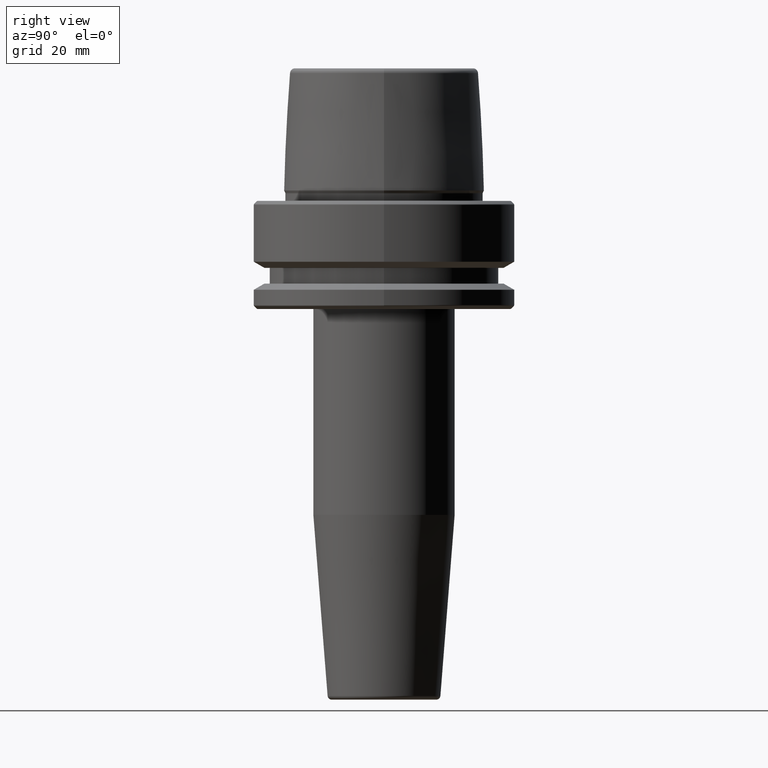
[diagram: clean part render]
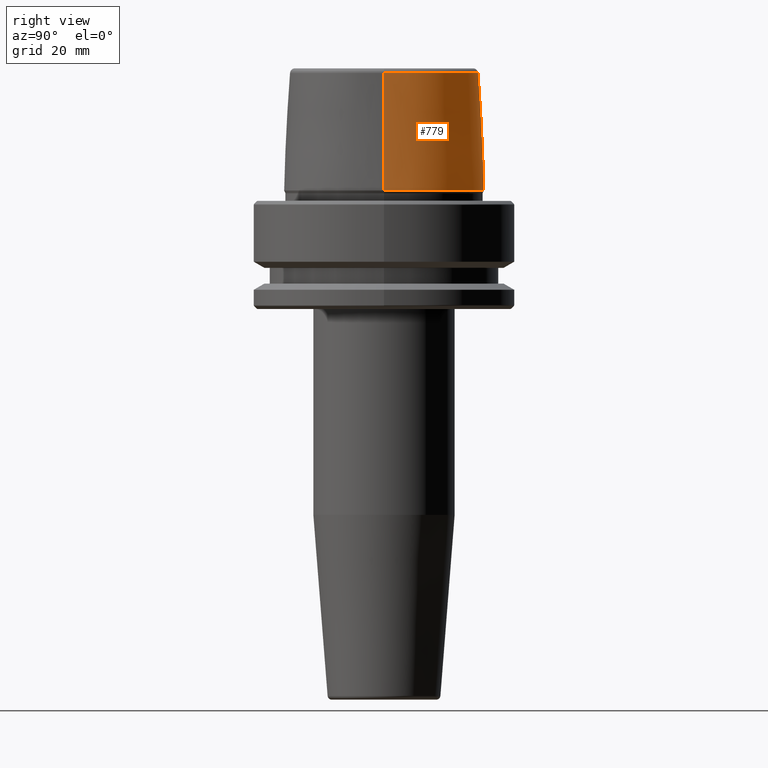
[diagram: same view with one face highlighted and labeled with its STEP entity id]
A machine part, right view. The second image highlights one B-rep face of the part: STEP entity #779.
In plain terms, the highlighted conical surface has half-angle 2.868 deg.
Its self-contained STEP definition (entity closure, byte-faithful):
#48 = EDGE_LOOP ( 'NONE', ( #449, #506, #248, #662 ) ) ;
#90 = EDGE_CURVE ( 'NONE', #976, #149, #157, .T. ) ;
#94 = CIRCLE ( 'NONE', #1080, 22.77957961851797100 ) ;
#102 = AXIS2_PLACEMENT_3D ( 'NONE', #950, #643, #1055 ) ;
#124 = VERTEX_POINT ( 'NONE', #284 ) ;
#149 = VERTEX_POINT ( 'NONE', #574 ) ;
#157 = LINE ( 'NONE', #544, #1187 ) ;
#162 = CARTESIAN_POINT ( 'NONE',  ( -22.77957961851797100, 0.0000000000000000000, 30.76004333261571900 ) ) ;
#248 = ORIENTED_EDGE ( 'NONE', *, *, #535, .T. ) ;
#252 = VERTEX_POINT ( 'NONE', #162 ) ;
#284 = CARTESIAN_POINT ( 'NONE',  ( -24.19537568275369200, 2.963078938405201500E-015, 2.500000000000002200 ) ) ;
#318 = DIRECTION ( 'NONE',  ( -0.0000000000000000000, -0.0000000000000000000, 1.000000000000000000 ) ) ;
#330 = DIRECTION ( 'NONE',  ( 0.05003611051310804400, 6.127656258166099700E-018, -0.9987474093306675200 ) ) ;
#357 = CARTESIAN_POINT ( 'NONE',  ( 22.77957961851797100, 2.876386432489616700E-015, 30.76004333261571900 ) ) ;
#365 = CARTESIAN_POINT ( 'NONE',  ( 0.0000000000000000000, 0.0000000000000000000, 30.76004333261571900 ) ) ;
#388 = DIRECTION ( 'NONE',  ( -0.05003611051310804400, 0.0000000000000000000, -0.9987474093306675200 ) ) ;
#437 = CONICAL_SURFACE ( 'NONE', #102, 24.19537568275369200, 0.05005701257455997400 ) ;
#449 = ORIENTED_EDGE ( 'NONE', *, *, #983, .F. ) ;
#460 = DIRECTION ( 'NONE',  ( 1.000000000000000000, 0.0000000000000000000, 0.0000000000000000000 ) ) ;
#474 = CIRCLE ( 'NONE', #768, 24.19537568275369200 ) ;
#505 = FACE_OUTER_BOUND ( 'NONE', #48, .T. ) ;
#506 = ORIENTED_EDGE ( 'NONE', *, *, #90, .T. ) ;
#535 = EDGE_CURVE ( 'NONE', #149, #124, #474, .T. ) ;
#544 = CARTESIAN_POINT ( 'NONE',  ( 24.19537568275369200, 2.963078938405201500E-015, 2.500000000000002200 ) ) ;
#574 = CARTESIAN_POINT ( 'NONE',  ( 24.19537568275369200, 0.0000000000000000000, 2.500000000000002200 ) ) ;
#643 = DIRECTION ( 'NONE',  ( 0.0000000000000000000, 0.0000000000000000000, -1.000000000000000000 ) ) ;
#662 = ORIENTED_EDGE ( 'NONE', *, *, #787, .F. ) ;
#728 = LINE ( 'NONE', #1061, #1158 ) ;
#768 = AXIS2_PLACEMENT_3D ( 'NONE', #986, #318, #1145 ) ;
#779 = ADVANCED_FACE ( 'NONE', ( #505 ), #437, .T. ) ;
#787 = EDGE_CURVE ( 'NONE', #252, #124, #728, .T. ) ;
#950 = CARTESIAN_POINT ( 'NONE',  ( 0.0000000000000000000, 0.0000000000000000000, 2.500000000000002200 ) ) ;
#976 = VERTEX_POINT ( 'NONE', #357 ) ;
#983 = EDGE_CURVE ( 'NONE', #976, #252, #94, .T. ) ;
#986 = CARTESIAN_POINT ( 'NONE',  ( 0.0000000000000000000, 0.0000000000000000000, 2.500000000000002200 ) ) ;
#1037 = DIRECTION ( 'NONE',  ( -0.0000000000000000000, -0.0000000000000000000, 1.000000000000000000 ) ) ;
#1055 = DIRECTION ( 'NONE',  ( -1.000000000000000000, 0.0000000000000000000, 0.0000000000000000000 ) ) ;
#1061 = CARTESIAN_POINT ( 'NONE',  ( -24.19537568275369200, 0.0000000000000000000, 2.500000000000002200 ) ) ;
#1080 = AXIS2_PLACEMENT_3D ( 'NONE', #365, #1037, #460 ) ;
#1145 = DIRECTION ( 'NONE',  ( 1.000000000000000000, 0.0000000000000000000, 0.0000000000000000000 ) ) ;
#1158 = VECTOR ( 'NONE', #388, 1000.000000000000200 ) ;
#1187 = VECTOR ( 'NONE', #330, 1000.000000000000200 ) ;